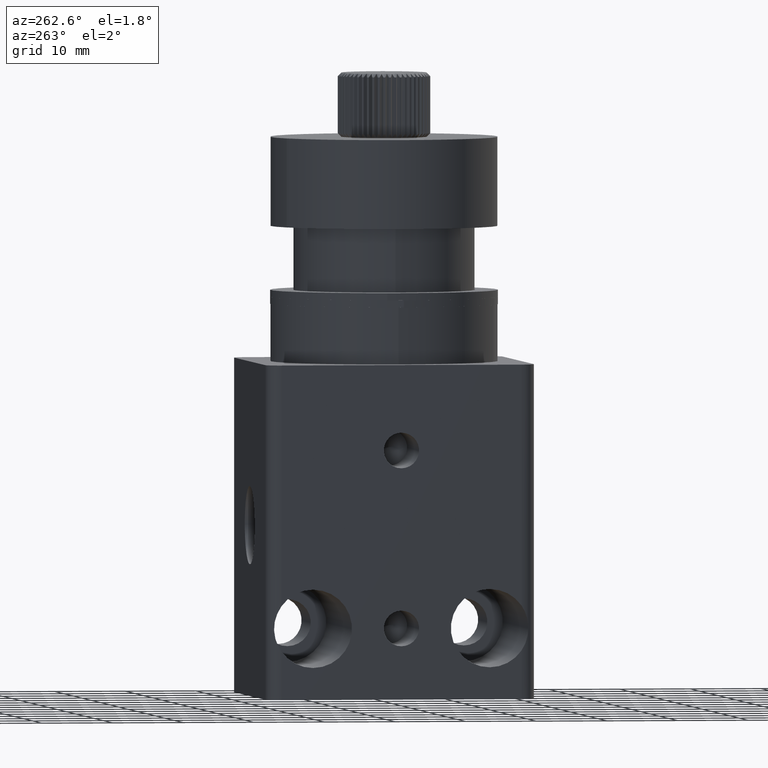
[diagram: clean part render]
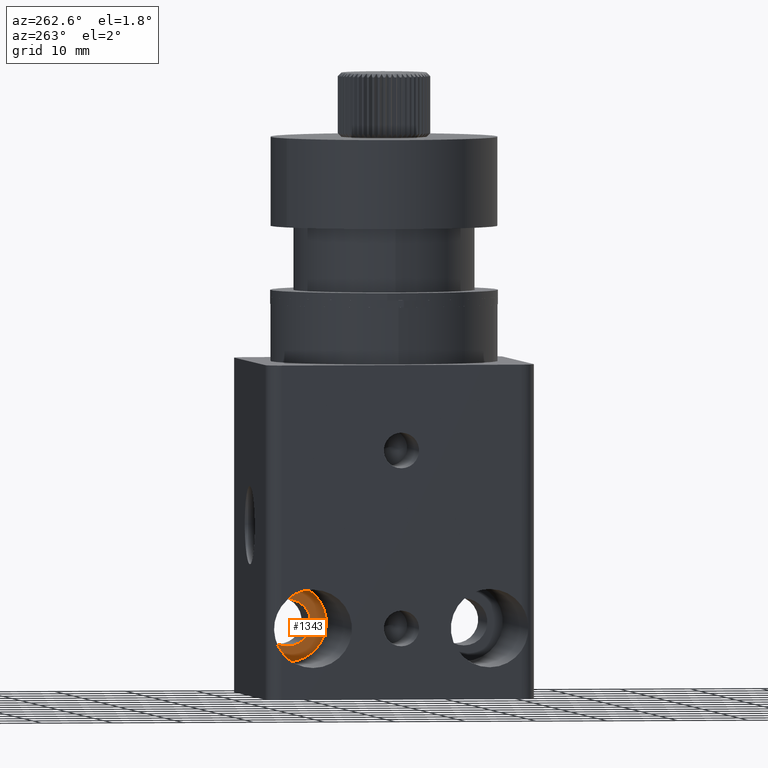
[diagram: same view with one face highlighted and labeled with its STEP entity id]
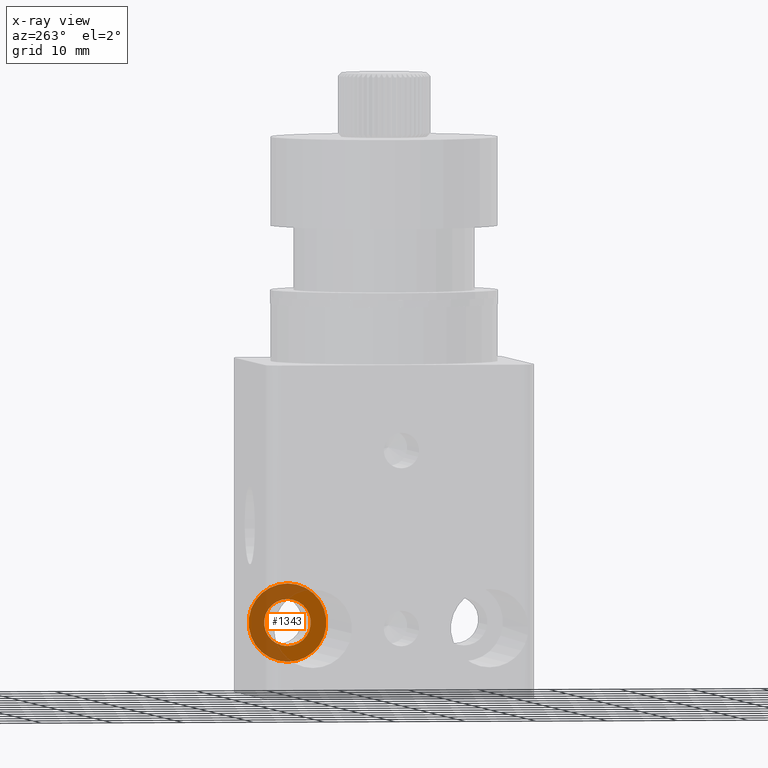
[diagram: x-ray of the same camera — body ghosted, the highlighted face saturated]
A machine part, auxiliary view. The second image highlights one B-rep face of the part: STEP entity #1343.
The next image is the same camera in x-ray: the body ghosted, the highlighted face saturated — about 52% of this face is hidden behind the body in this view.
In plain terms, the highlighted planar face has unit normal (1, 0, 0).
Its self-contained STEP definition (entity closure, byte-faithful):
#135 = CIRCLE ( 'NONE', #5438, 5.499999999999998200 ) ;
#182 = DIRECTION ( 'NONE',  ( 1.000000000000000000, 0.0000000000000000000, 0.0000000000000000000 ) ) ;
#371 = CARTESIAN_POINT ( 'NONE',  ( 46.62291667820559100, 65.28689962133746900, 13.22749317272971600 ) ) ;
#379 = ORIENTED_EDGE ( 'NONE', *, *, #8153, .F. ) ;
#531 = CARTESIAN_POINT ( 'NONE',  ( 46.62291667820559100, 65.28689962133746900, 13.22749317272971600 ) ) ;
#776 = CARTESIAN_POINT ( 'NONE',  ( 46.62291667820559100, 65.28689962133746900, 18.72749317272971200 ) ) ;
#1032 = DIRECTION ( 'NONE',  ( -1.000000000000000000, -0.0000000000000000000, -0.0000000000000000000 ) ) ;
#1217 = FACE_OUTER_BOUND ( 'NONE', #7858, .T. ) ;
#1282 = AXIS2_PLACEMENT_3D ( 'NONE', #7144, #7867, #3342 ) ;
#1330 = FACE_BOUND ( 'NONE', #2998, .T. ) ;
#1343 = ADVANCED_FACE ( 'NONE', ( #1330, #1217 ), #1949, .F. ) ;
#1731 = CIRCLE ( 'NONE', #3853, 3.299999999999990500 ) ;
#1949 = PLANE ( 'NONE',  #2652 ) ;
#2266 = ORIENTED_EDGE ( 'NONE', *, *, #5825, .T. ) ;
#2608 = EDGE_CURVE ( 'NONE', #5139, #6190, #135, .T. ) ;
#2652 = AXIS2_PLACEMENT_3D ( 'NONE', #7068, #182, #7890 ) ;
#2998 = EDGE_LOOP ( 'NONE', ( #5374, #379 ) ) ;
#3259 = ORIENTED_EDGE ( 'NONE', *, *, #2608, .T. ) ;
#3342 = DIRECTION ( 'NONE',  ( 0.0000000000000000000, 0.0000000000000000000, 1.000000000000000000 ) ) ;
#3853 = AXIS2_PLACEMENT_3D ( 'NONE', #531, #5033, #4974 ) ;
#4082 = VERTEX_POINT ( 'NONE', #7464 ) ;
#4292 = DIRECTION ( 'NONE',  ( 0.0000000000000000000, 0.0000000000000000000, 1.000000000000000000 ) ) ;
#4432 = CARTESIAN_POINT ( 'NONE',  ( 46.62291667820559100, 65.28689962133746900, 13.22749317272971600 ) ) ;
#4489 = DIRECTION ( 'NONE',  ( 0.0000000000000000000, 0.0000000000000000000, 1.000000000000000000 ) ) ;
#4974 = DIRECTION ( 'NONE',  ( 0.0000000000000000000, 0.0000000000000000000, 1.000000000000000000 ) ) ;
#4984 = CARTESIAN_POINT ( 'NONE',  ( 46.62291667820559100, 65.28689962133746900, 7.727493172729718500 ) ) ;
#5033 = DIRECTION ( 'NONE',  ( -1.000000000000000000, -0.0000000000000000000, -0.0000000000000000000 ) ) ;
#5139 = VERTEX_POINT ( 'NONE', #776 ) ;
#5374 = ORIENTED_EDGE ( 'NONE', *, *, #8008, .F. ) ;
#5438 = AXIS2_PLACEMENT_3D ( 'NONE', #371, #1032, #4292 ) ;
#5825 = EDGE_CURVE ( 'NONE', #6190, #5139, #7262, .T. ) ;
#6190 = VERTEX_POINT ( 'NONE', #4984 ) ;
#6571 = VERTEX_POINT ( 'NONE', #7335 ) ;
#7068 = CARTESIAN_POINT ( 'NONE',  ( 46.62291667820559100, 68.58689962133746600, 13.22749317272971600 ) ) ;
#7144 = CARTESIAN_POINT ( 'NONE',  ( 46.62291667820559100, 65.28689962133746900, 13.22749317272971600 ) ) ;
#7262 = CIRCLE ( 'NONE', #7284, 5.499999999999998200 ) ;
#7284 = AXIS2_PLACEMENT_3D ( 'NONE', #4432, #7632, #4489 ) ;
#7335 = CARTESIAN_POINT ( 'NONE',  ( 46.62291667820559100, 65.28689962133746900, 16.52749317272970600 ) ) ;
#7464 = CARTESIAN_POINT ( 'NONE',  ( 46.62291667820559100, 65.28689962133746900, 9.927493172729725800 ) ) ;
#7535 = CIRCLE ( 'NONE', #1282, 3.299999999999990500 ) ;
#7632 = DIRECTION ( 'NONE',  ( -1.000000000000000000, -0.0000000000000000000, -0.0000000000000000000 ) ) ;
#7858 = EDGE_LOOP ( 'NONE', ( #3259, #2266 ) ) ;
#7867 = DIRECTION ( 'NONE',  ( -1.000000000000000000, -0.0000000000000000000, -0.0000000000000000000 ) ) ;
#7890 = DIRECTION ( 'NONE',  ( 0.0000000000000000000, 0.0000000000000000000, -1.000000000000000000 ) ) ;
#8008 = EDGE_CURVE ( 'NONE', #6571, #4082, #7535, .T. ) ;
#8153 = EDGE_CURVE ( 'NONE', #4082, #6571, #1731, .T. ) ;